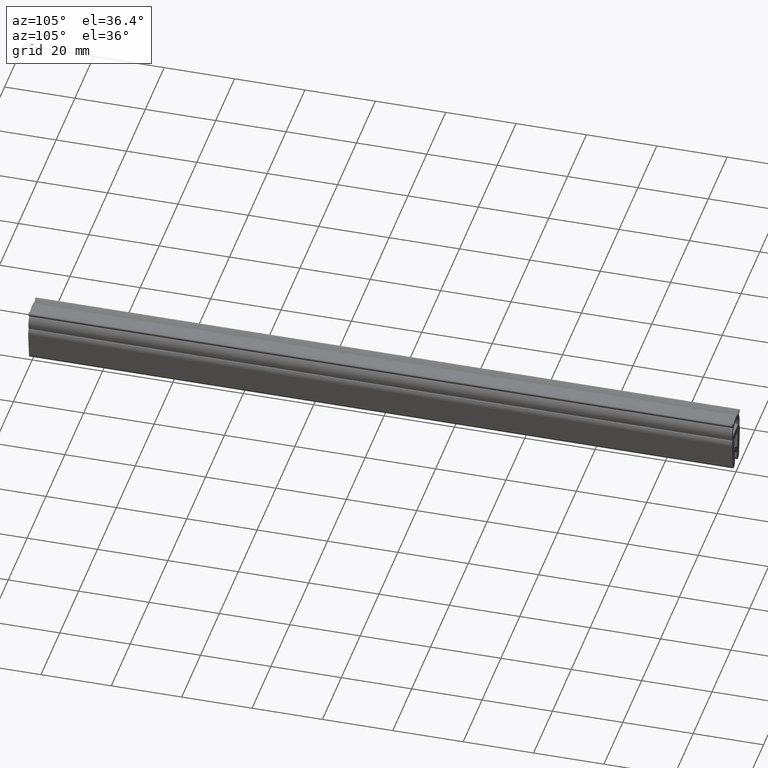
[diagram: clean part render]
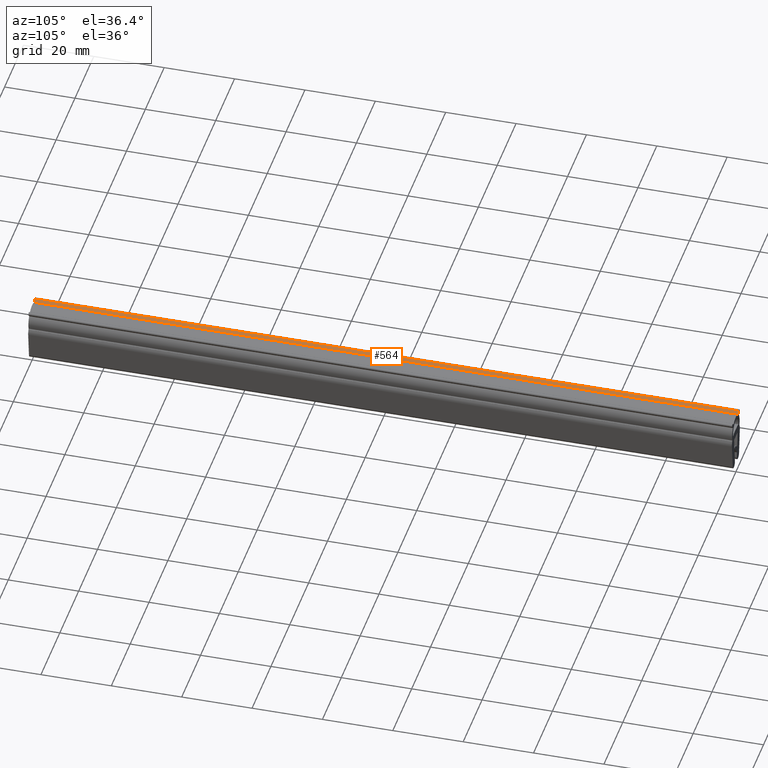
[diagram: same view with one face highlighted and labeled with its STEP entity id]
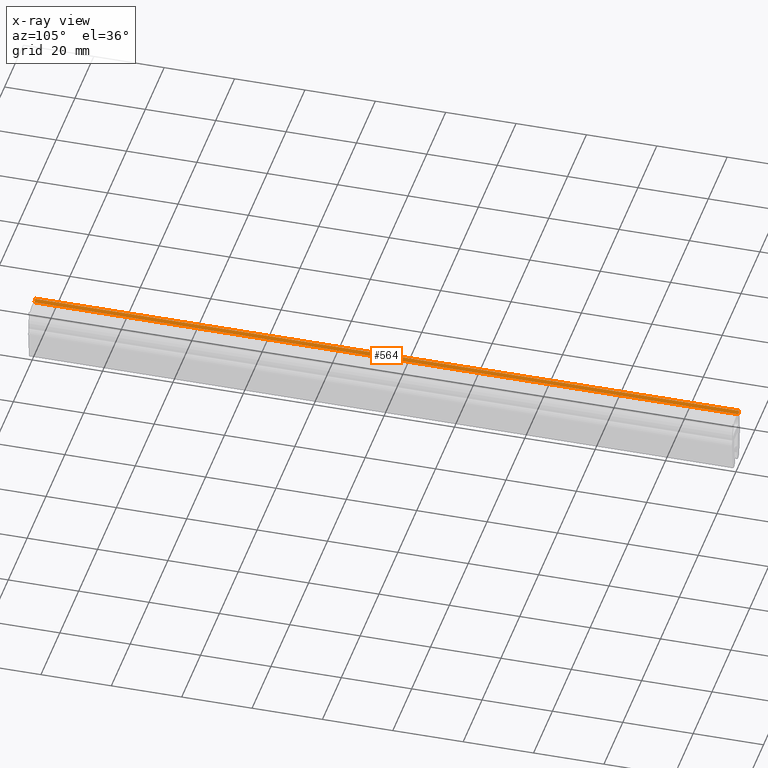
[diagram: x-ray of the same camera — body ghosted, the highlighted face saturated]
A machine part, auxiliary view. The second image highlights one B-rep face of the part: STEP entity #564.
The next image is the same camera in x-ray: the body ghosted, the highlighted face saturated — about 0% of this face is hidden behind the body in this view.
In plain terms, the highlighted face is a freeform B-spline surface patch.
Its self-contained STEP definition (entity closure, byte-faithful):
#148=CARTESIAN_POINT('',(-2.452689649487200,0.0,-0.840203569326334));
#149=VERTEX_POINT('',#148);
#163=CARTESIAN_POINT('',(-3.146446609406730,0.0,-0.146446609406737));
#164=VERTEX_POINT('',#163);
#165=CARTESIAN_POINT('',(-3.146446609406730,0.0,-0.146446609406737));
#166=CARTESIAN_POINT('',(-2.452689649487200,0.0,-0.840203569326334));
#167=QUASI_UNIFORM_CURVE('',1,(#165,#166),.UNSPECIFIED.,.F.,.U.);
#168=EDGE_CURVE('',#164,#149,#167,.T.);
#256=CARTESIAN_POINT('',(-3.146446609406730,200.0,-0.146446609406737));
#257=VERTEX_POINT('',#256);
#275=CARTESIAN_POINT('',(-2.452689649487200,200.0,-0.840203569326334));
#276=VERTEX_POINT('',#275);
#277=CARTESIAN_POINT('',(-3.146446609406730,200.0,-0.146446609406737));
#278=CARTESIAN_POINT('',(-2.452689649487200,200.0,-0.840203569326334));
#279=QUASI_UNIFORM_CURVE('',1,(#277,#278),.UNSPECIFIED.,.F.,.U.);
#280=EDGE_CURVE('',#257,#276,#279,.T.);
#541=CARTESIAN_POINT('',(-2.452689649487200,200.0,-0.840203569326334));
#542=CARTESIAN_POINT('',(-2.452689649487200,0.0,-0.840203569326334));
#543=QUASI_UNIFORM_CURVE('',1,(#541,#542),.UNSPECIFIED.,.F.,.U.);
#544=EDGE_CURVE('',#276,#149,#543,.T.);
#549=CARTESIAN_POINT('',(-2.418036475180279,-9.989999612361183,-0.874856743633256));
#550=CARTESIAN_POINT('',(-3.181099839537711,-9.989999612361183,-0.111793379275804));
#551=CARTESIAN_POINT('',(-2.418036475180279,209.990004976779200,-0.874856743633256));
#552=CARTESIAN_POINT('',(-3.181099839537711,209.990004976779200,-0.111793379275804));
#553=B_SPLINE_SURFACE_WITH_KNOTS('',1,1,((#549,#551),(#550,#552)),.UNSPECIFIED.,.F.,.F.,.U.,(2,2),(2,2),(0.041708316325769,0.958291750729457),(0.0,219.980004589140410),.UNSPECIFIED.);
#554=ORIENTED_EDGE('',*,*,#168,.T.);
#555=ORIENTED_EDGE('',*,*,#544,.F.);
#556=ORIENTED_EDGE('',*,*,#280,.F.);
#557=CARTESIAN_POINT('',(-3.146446609406730,200.0,-0.146446609406737));
#558=CARTESIAN_POINT('',(-3.146446609406730,0.0,-0.146446609406737));
#559=QUASI_UNIFORM_CURVE('',1,(#557,#558),.UNSPECIFIED.,.F.,.U.);
#560=EDGE_CURVE('',#257,#164,#559,.T.);
#561=ORIENTED_EDGE('',*,*,#560,.T.);
#562=EDGE_LOOP('',(#554,#555,#556,#561));
#563=FACE_OUTER_BOUND('',#562,.T.);
#564=ADVANCED_FACE('',(#563),#553,.F.);